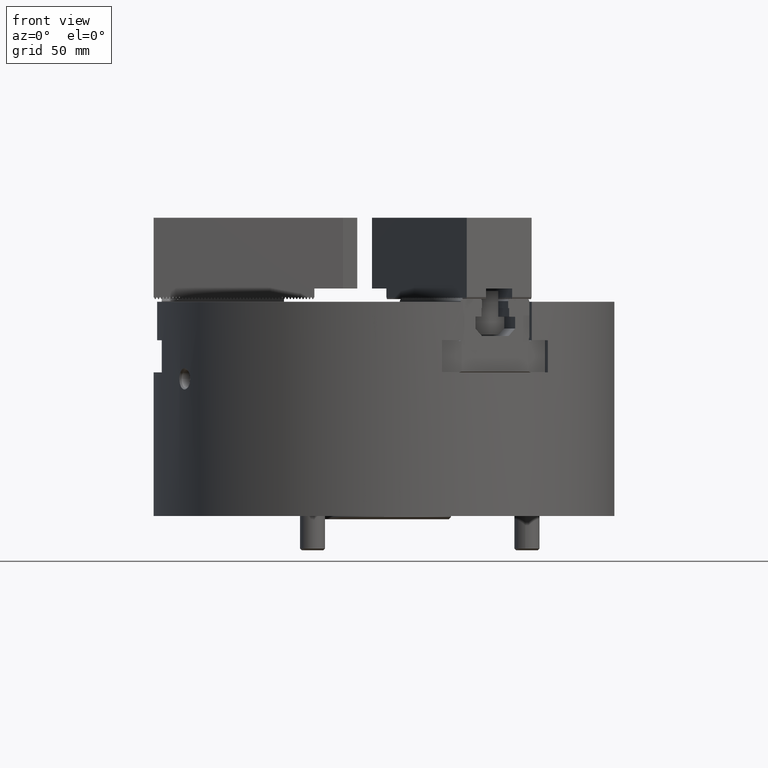
[diagram: clean part render]
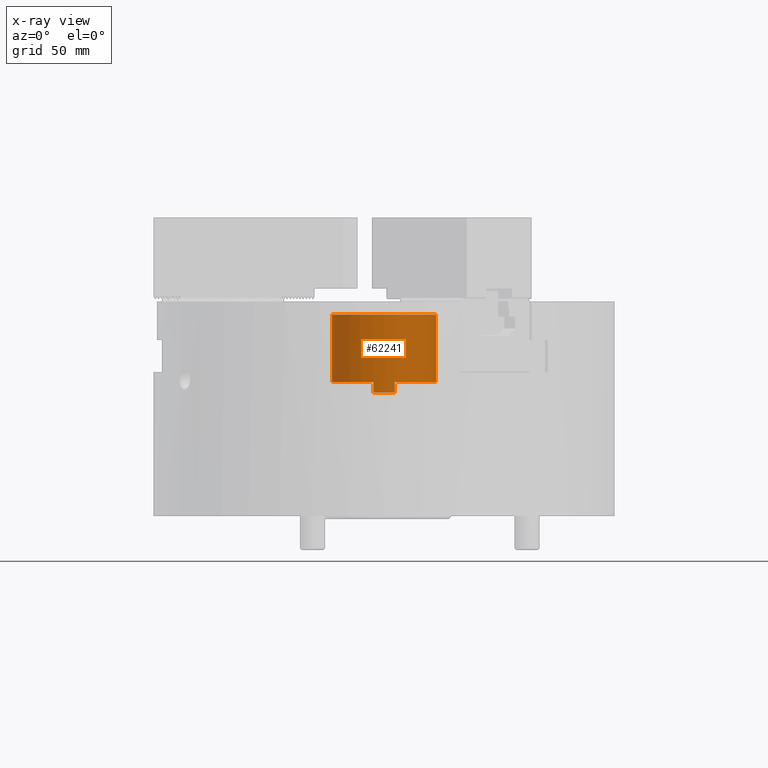
[diagram: x-ray — body ghosted, one internal face saturated and labeled with its STEP entity id]
A machine part, front view, then the same camera in x-ray: the body is ghosted and one INTERNAL B-rep face — a face not visible from any outside direction — is saturated and labeled: STEP entity #62241.
In plain terms, the highlighted cylindrical surface (bore or boss wall) has radius 24.5 mm, axis along (0, 0, -1).
Its self-contained STEP definition (entity closure, byte-faithful):
#871=CYLINDRICAL_SURFACE('',#65241,24.5);
#1598=CIRCLE('',#65242,24.5);
#1599=CIRCLE('',#65243,24.5);
#1600=CIRCLE('',#65244,24.5);
#1601=CIRCLE('',#65245,24.5);
#1602=CIRCLE('',#65246,24.5);
#3759=ORIENTED_EDGE('',*,*,#22510,.T.);
#3760=ORIENTED_EDGE('',*,*,#22511,.T.);
#3761=ORIENTED_EDGE('',*,*,#22512,.T.);
#3762=ORIENTED_EDGE('',*,*,#22513,.T.);
#3763=ORIENTED_EDGE('',*,*,#22514,.T.);
#3764=ORIENTED_EDGE('',*,*,#22515,.T.);
#3765=ORIENTED_EDGE('',*,*,#22516,.T.);
#3766=ORIENTED_EDGE('',*,*,#22517,.T.);
#3767=ORIENTED_EDGE('',*,*,#22518,.T.);
#22510=EDGE_CURVE('',#31965,#31965,#1598,.T.);
#22511=EDGE_CURVE('',#31966,#31967,#37964,.T.);
#22512=EDGE_CURVE('',#31967,#31968,#1599,.T.);
#22513=EDGE_CURVE('',#31968,#31969,#37965,.T.);
#22514=EDGE_CURVE('',#31969,#31970,#1600,.T.);
#22515=EDGE_CURVE('',#31970,#31971,#37966,.T.);
#22516=EDGE_CURVE('',#31971,#31972,#1601,.T.);
#22517=EDGE_CURVE('',#31972,#31973,#37967,.T.);
#22518=EDGE_CURVE('',#31973,#31966,#1602,.T.);
#31965=VERTEX_POINT('',#90178);
#31966=VERTEX_POINT('',#90180);
#31967=VERTEX_POINT('',#90181);
#31968=VERTEX_POINT('',#90183);
#31969=VERTEX_POINT('',#90185);
#31970=VERTEX_POINT('',#90187);
#31971=VERTEX_POINT('',#90189);
#31972=VERTEX_POINT('',#90191);
#31973=VERTEX_POINT('',#90193);
#37964=LINE('',#90179,#45964);
#37965=LINE('',#90184,#45965);
#37966=LINE('',#90188,#45966);
#37967=LINE('',#90192,#45967);
#45964=VECTOR('',#70410,1000.);
#45965=VECTOR('',#70413,1000.);
#45966=VECTOR('',#70416,1000.);
#45967=VECTOR('',#70419,1000.);
#53752=EDGE_LOOP('',(#3759));
#53753=EDGE_LOOP('',(#3760,#3761,#3762,#3763,#3764,#3765,#3766,#3767));
#56966=FACE_BOUND('',#53752,.T.);
#56967=FACE_BOUND('',#53753,.T.);
#62241=ADVANCED_FACE('',(#56966,#56967),#871,.T.);
#65241=AXIS2_PLACEMENT_3D('',#90176,#70406,#70407);
#65242=AXIS2_PLACEMENT_3D('',#90177,#70408,#70409);
#65243=AXIS2_PLACEMENT_3D('',#90182,#70411,#70412);
#65244=AXIS2_PLACEMENT_3D('',#90186,#70414,#70415);
#65245=AXIS2_PLACEMENT_3D('',#90190,#70417,#70418);
#65246=AXIS2_PLACEMENT_3D('',#90194,#70420,#70421);
#70406=DIRECTION('',(0.,0.,-1.));
#70407=DIRECTION('',(0.,1.,0.));
#70408=DIRECTION('',(0.,0.,-1.));
#70409=DIRECTION('',(0.,1.,0.));
#70410=DIRECTION('',(0.,0.,1.));
#70411=DIRECTION('',(0.,0.,1.));
#70412=DIRECTION('',(0.,-1.,0.));
#70413=DIRECTION('',(0.,0.,-1.));
#70414=DIRECTION('',(0.,0.,1.));
#70415=DIRECTION('',(0.,-1.,0.));
#70416=DIRECTION('',(0.,0.,1.));
#70417=DIRECTION('',(0.,0.,1.));
#70418=DIRECTION('',(0.,-1.,0.));
#70419=DIRECTION('',(0.,0.,-1.));
#70420=DIRECTION('',(0.,0.,1.));
#70421=DIRECTION('',(0.,-1.,0.));
#90176=CARTESIAN_POINT('',(0.,0.,-52.));
#90177=CARTESIAN_POINT('',(0.,0.,-6.00000000000001));
#90178=CARTESIAN_POINT('',(0.,24.5,-6.00000000000001));
#90179=CARTESIAN_POINT('',(-5.,23.9843699104229,-101.5));
#90180=CARTESIAN_POINT('',(-5.,23.9843699104229,-42.5));
#90181=CARTESIAN_POINT('',(-5.,23.9843699104229,-37.5));
#90182=CARTESIAN_POINT('',(0.,0.,-37.5));
#90183=CARTESIAN_POINT('',(-5.,-23.9843699104229,-37.5));
#90184=CARTESIAN_POINT('',(-5.,-23.9843699104229,-101.5));
#90185=CARTESIAN_POINT('',(-5.,-23.9843699104229,-42.5));
#90186=CARTESIAN_POINT('',(0.,0.,-42.5));
#90187=CARTESIAN_POINT('',(5.,-23.9843699104229,-42.5));
#90188=CARTESIAN_POINT('',(5.,-23.9843699104229,-101.5));
#90189=CARTESIAN_POINT('',(5.,-23.9843699104229,-37.5));
#90190=CARTESIAN_POINT('',(0.,0.,-37.5));
#90191=CARTESIAN_POINT('',(5.,23.9843699104228,-37.5000000000001));
#90192=CARTESIAN_POINT('',(5.,23.9843699104229,-101.5));
#90193=CARTESIAN_POINT('',(5.,23.9843699104229,-42.5));
#90194=CARTESIAN_POINT('',(0.,0.,-42.5));